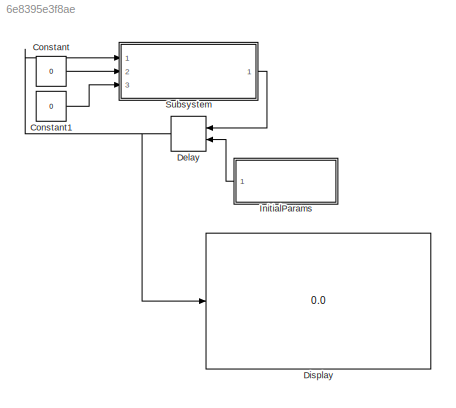
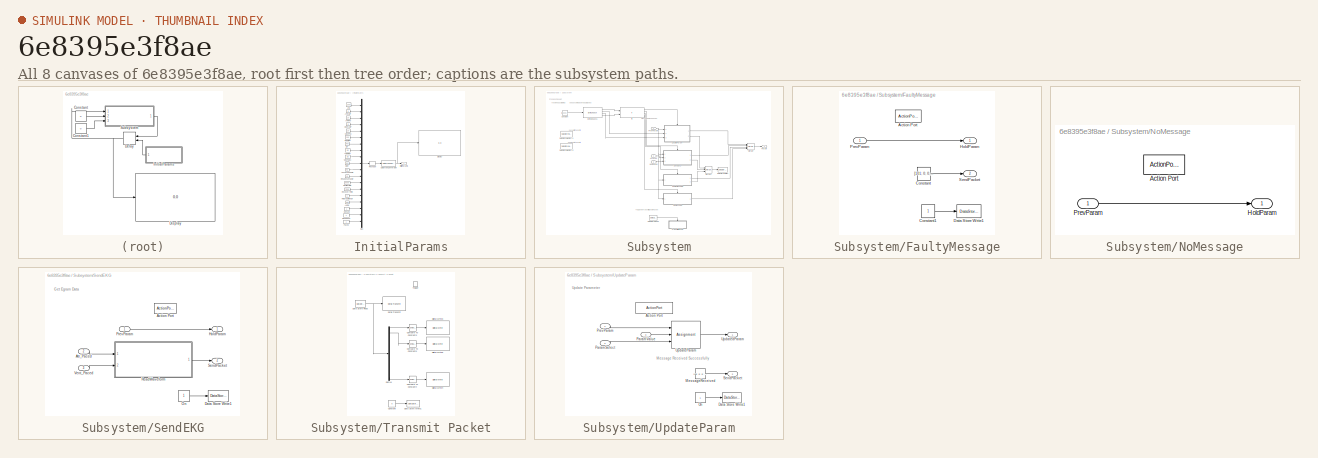
[diagram: thumbnail index - all 8 canvases of the model, root first then tree order]
MODEL slx_6e8395e3f8ae
KIND model
CONFIG AbsTol = auto
CONFIG EnableMultiTasking = on
CONFIG FixedStep = 1e-3
CONFIG MaxStep = auto
CONFIG MinStep = auto
CONFIG RelTol = 1e-3
CONFIG SampleTimeConstraint = Unconstrained
CONFIG Solver = FixedStepAuto
CONFIG SolverName = FixedStepAuto
CONFIG StartTime = 0.0
CONFIG StopTime = 10.0
BLOCK [Constant] Constant
  OutDataTypeStr = uint8
  Value = 0
BLOCK [Constant] Constant1
  OutDataTypeStr = uint8
  Value = 0
BLOCK [Delay] Delay
  DelayLength = 1
  InitialCondition = [1000 5 10 5 10 300 400 3.5 3.5 500 0.1 16 5000 5000 1 100 1 1 1]
  InitialConditionSource = Input port
  InputPortMap = u0,p4
  Ports = [2, 1]
BLOCK [Display] Display
  Decimation = 1
  Ports = [1]
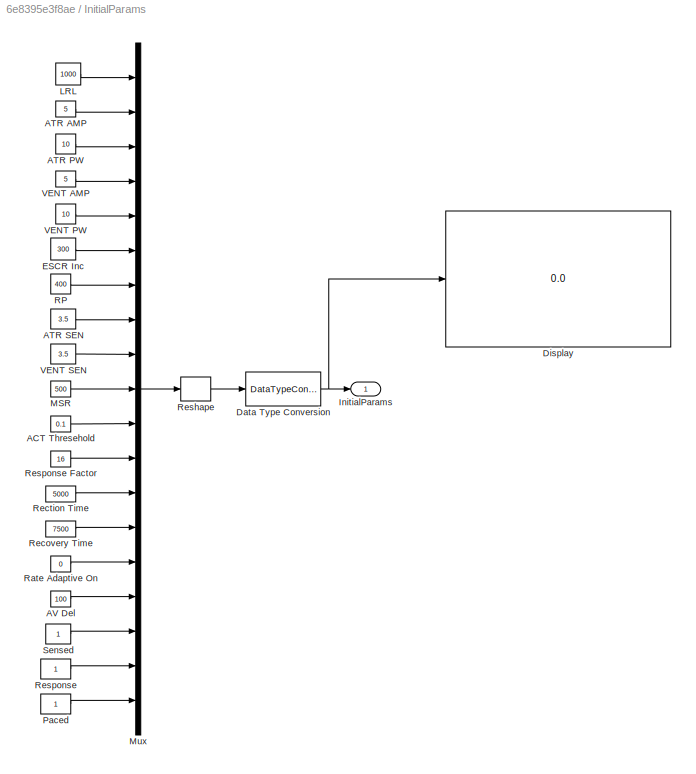
BLOCK [SubSystem] InitialParams
  Ports = [0, 1]
  RequestExecContextInheritance = off
BLOCK [Constant] InitialParams/ ACT Thresehold
  Value = 0.1
BLOCK [Constant] InitialParams/ MSR
  Value = 500
BLOCK [Constant] InitialParams/ VENT AMP
  Value = 5
BLOCK [Constant] InitialParams/ATR AMP
  Value = 5
BLOCK [Constant] InitialParams/ATR PW
  Value = 10
BLOCK [Constant] InitialParams/ATR SEN
  Value = 3.5
BLOCK [Constant] InitialParams/AV Del
  Value = 100
BLOCK [DataTypeConversion] InitialParams/Data Type Conversion
  OutDataTypeStr = single
  RndMeth = Floor
  SaturateOnIntegerOverflow = off
BLOCK [Display] InitialParams/Display
  Decimation = 1
  Ports = [1]
BLOCK [Constant] InitialParams/ESCR Inc
  Value = 300
BLOCK [Outport] InitialParams/InitialParams
BLOCK [Constant] InitialParams/LRL
  Value = 1000
BLOCK [Mux] InitialParams/Mux
  DisplayOption = bar
  Inputs = 19
  Ports = [19, 1]
BLOCK [Constant] InitialParams/Paced
BLOCK [Constant] InitialParams/RP
  Value = 400
BLOCK [Constant] InitialParams/Rate Adaptive On
  Value = 0
BLOCK [Constant] InitialParams/Recovery Time
  Value = 7500
BLOCK [Constant] InitialParams/Rection Time
  Value = 5000
BLOCK [Reshape] InitialParams/Reshape
  OutputDimensionality = Row vector (2-D)
  Ports = [1, 1]
BLOCK [Constant] InitialParams/Response
BLOCK [Constant] InitialParams/Response Factor
  Value = 16
BLOCK [Constant] InitialParams/Sensed
BLOCK [Constant] InitialParams/VENT PW
  Value = 10
BLOCK [Constant] InitialParams/VENT SEN
  Value = 3.5
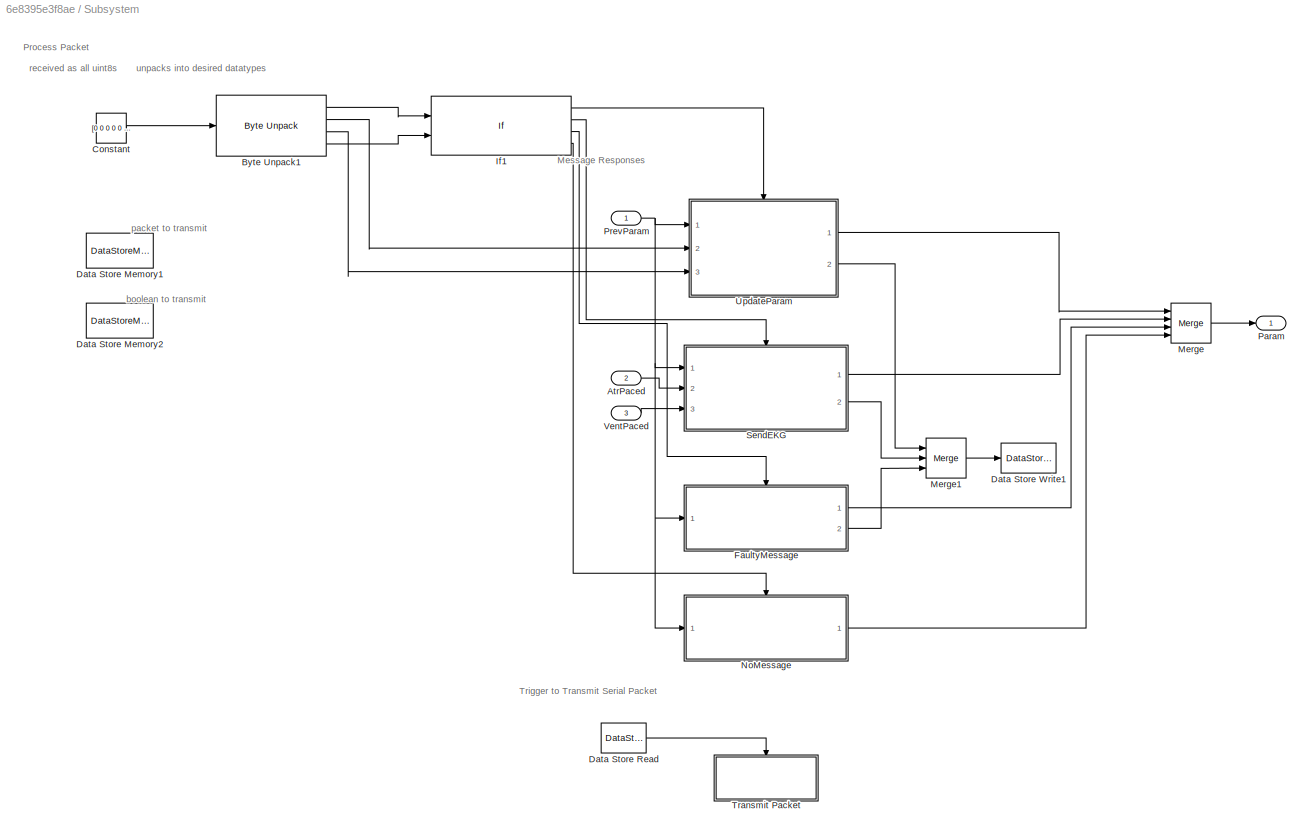
BLOCK [SubSystem] Subsystem
  Ports = [3, 1]
  RequestExecContextInheritance = off
BLOCK [Inport] Subsystem/AtrPaced
  Port = 2
BLOCK [Reference] Subsystem/Byte Unpack1  REF=etargetslib/Byte Unpack
  Ports = [1, 4]
  SourceBlock = etargetslib/Byte Unpack
  SourceProductBaseCode = ME
  SourceType = Byte Unpack
BLOCK [Constant] Subsystem/Constant
  OutDataTypeStr = uint8
  Value = [0 0 0 0 0 0 0]
BLOCK [DataStoreMemory] Subsystem/Data Store Memory1
  DataStoreName = Message
  InitialValue = [0; 0; 0; 0; 0; 0; 0; 0; 0; 0; 0; 0; 0; 0; 0; 0]
  OutDataTypeStr = uint8
  ReadBeforeWriteMsg = warning
  ShowAdditionalParam = off
  WriteAfterReadMsg = warning
  WriteAfterWriteMsg = warning
BLOCK [DataStoreMemory] Subsystem/Data Store Memory2
  DataStoreName = Transmit
  ReadBeforeWriteMsg = warning
  ShowAdditionalParam = off
  WriteAfterReadMsg = warning
  WriteAfterWriteMsg = warning
BLOCK [DataStoreRead] Subsystem/Data Store Read
  DataStoreName = Transmit
  Ports = [0, 1]
BLOCK [DataStoreWrite] Subsystem/Data Store Write1
  DataStoreName = Message
  Ports = [1]
BLOCK [SubSystem] Subsystem/FaultyMessage
  Ports = [1, 2, 0, 0, 0, 0, 0, 1]
  RequestExecContextInheritance = off
  TreatAsAtomicUnit = on
BLOCK [ActionPort] Subsystem/FaultyMessage/Action Port
  ActionPortLabel = elseif( u1~=0 & u2~=0)
BLOCK [Constant] Subsystem/FaultyMessage/Constant
  OutDataTypeStr = uint8
  Value = [101; 0; 0; 0; 0; 0; 0; 0; 0; 0; 0; 0; 0; 0; 0; 42]
BLOCK [Constant] Subsystem/FaultyMessage/Constant1
BLOCK [DataStoreWrite] Subsystem/FaultyMessage/Data Store Write1
  DataStoreName = Transmit
  Ports = [1]
BLOCK [Outport] Subsystem/FaultyMessage/HoldParam
BLOCK [Inport] Subsystem/FaultyMessage/PrevParam
BLOCK [Outport] Subsystem/FaultyMessage/SendPacket
  Port = 2
BLOCK [If] Subsystem/If1
  ElseIfExpressions = u1 == 85 & u2 == 42, u1~=0 & u2~=0
  IfExpression = u1 == 34 & u2 == 42
  NumInputs = 2
  Ports = [2, 4]
BLOCK [Merge] Subsystem/Merge
  Inputs = 4
  Ports = [4, 1]
BLOCK [Merge] Subsystem/Merge1
  Inputs = 3
  Ports = [3, 1]
BLOCK [SubSystem] Subsystem/NoMessage
  Ports = [1, 1, 0, 0, 0, 0, 0, 1]
  RequestExecContextInheritance = off
  TreatAsAtomicUnit = on
BLOCK [ActionPort] Subsystem/NoMessage/Action Port
  ActionPortLabel = else
BLOCK [Outport] Subsystem/NoMessage/HoldParam
BLOCK [Inport] Subsystem/NoMessage/PrevParam
BLOCK [Outport] Subsystem/Param
BLOCK [Inport] Subsystem/PrevParam
BLOCK [SubSystem] Subsystem/SendEKG
  Ports = [3, 2, 0, 0, 0, 0, 0, 1]
  RequestExecContextInheritance = off
  TreatAsAtomicUnit = on
BLOCK [ActionPort] Subsystem/SendEKG/Action Port
  ActionPortLabel = elseif(u1 == 85 & u2 == 42)
BLOCK [Inport] Subsystem/SendEKG/Atr_Paced
  OutDataTypeStr = uint8
  Port = 2
BLOCK [DataStoreWrite] Subsystem/SendEKG/Data Store Write1
  DataStoreName = Transmit
  Ports = [1]
BLOCK [Outport] Subsystem/SendEKG/HoldParam
BLOCK [Constant] Subsystem/SendEKG/On
BLOCK [Inport] Subsystem/SendEKG/PrevParam
BLOCK [ModelReference] Subsystem/SendEKG/ReadWaveform
  ModelNameDialog = ReadWaveform.slx
  ModelReferenceVersion = 1.10
  Ports = [2, 1]
BLOCK [Outport] Subsystem/SendEKG/SendPacket
  Port = 2
BLOCK [Inport] Subsystem/SendEKG/Vent_Paced
  OutDataTypeStr = uint8
  Port = 3
BLOCK [SubSystem] Subsystem/Transmit Packet
  Ports = [0, 0, 0, 1]
  RequestExecContextInheritance = off
  TreatAsAtomicUnit = on
BLOCK [Reference] Subsystem/Transmit Packet/Compare To Constant3  REF=simulink/Logic and Bit
Operations/Compare
To Constant
  Commented = on
  Ports = [1, 1]
  SourceBlock = simulink/Logic and Bit\nOperations/Compare\nTo Constant
  SourceProductBaseCode = SL
  SourceType = Compare To Constant
BLOCK [Reference] Subsystem/Transmit Packet/Compare To Constant4  REF=simulink/Logic and Bit
Operations/Compare
To Constant
  Commented = on
  Ports = [1, 1]
  SourceBlock = simulink/Logic and Bit\nOperations/Compare\nTo Constant
  SourceProductBaseCode = SL
  SourceType = Compare To Constant
BLOCK [Reference] Subsystem/Transmit Packet/Compare To Constant5  REF=simulink/Logic and Bit
Operations/Compare
To Constant
  Commented = on
  Ports = [1, 1]
  SourceBlock = simulink/Logic and Bit\nOperations/Compare\nTo Constant
  SourceProductBaseCode = SL
  SourceType = Compare To Constant
BLOCK [Constant] Subsystem/Transmit Packet/Constant
  Value = 0
BLOCK [DataStoreRead] Subsystem/Transmit Packet/Data Store Read
  DataStoreName = Message
  Ports = [0, 1]
BLOCK [DataStoreWrite] Subsystem/Transmit Packet/Data Store Write1
  DataStoreName = Transmit
  Ports = [1]
BLOCK [Demux] Subsystem/Transmit Packet/Demux
  Commented = on
  Outputs = 16
  Ports = [1, 16]
BLOCK [Reference] Subsystem/Transmit Packet/Digital Write3  REF=frdmk64flib/Digital Write
  Commented = on
  Ports = [1]
  SourceBlock = frdmk64flib/Digital Write
  SourceProductBaseCode = EC_FRDM_K64F
  SourceType = freedomk64f.DigitalWrite
BLOCK [Reference] Subsystem/Transmit Packet/Digital Write4  REF=frdmk64flib/Digital Write
  Commented = on
  Ports = [1]
  SourceBlock = frdmk64flib/Digital Write
  SourceProductBaseCode = EC_FRDM_K64F
  SourceType = freedomk64f.DigitalWrite
BLOCK [Reference] Subsystem/Transmit Packet/Digital Write5  REF=frdmk64flib/Digital Write
  Commented = on
  Ports = [1]
  SourceBlock = frdmk64flib/Digital Write
  SourceProductBaseCode = EC_FRDM_K64F
  SourceType = freedomk64f.DigitalWrite
BLOCK [Reference] Subsystem/Transmit Packet/Serial Transmit  REF=frdmk64flib/Serial Transmit
  Commented = on
  Ports = [1]
  SourceBlock = frdmk64flib/Serial Transmit
  SourceProductBaseCode = EC_FRDM_K64F
  SourceType = freedomk64f.SCIWrite
BLOCK [TriggerPort] Subsystem/Transmit Packet/Trigger
  PortDimensions = 1
  Ports = []
  StatesWhenEnabling = held
  VariantControl = Variant
BLOCK [SubSystem] Subsystem/UpdateParam
  Ports = [3, 2, 0, 0, 0, 0, 0, 1]
  RequestExecContextInheritance = off
BLOCK [ActionPort] Subsystem/UpdateParam/Action Port
  ActionPortLabel = if(u1 == 34 & u2 == 42)
BLOCK [DataStoreWrite] Subsystem/UpdateParam/Data Store Write1
  DataStoreName = Transmit
  Ports = [1]
BLOCK [Constant] Subsystem/UpdateParam/MessageReceived
  OutDataTypeStr = uint8
  Value = [66; 0; 0; 0; 0; 0; 0; 0; 0; 0; 0; 0; 0; 0; 0; 42]
BLOCK [Constant] Subsystem/UpdateParam/On
BLOCK [Inport] Subsystem/UpdateParam/ParamSelect
  Port = 2
BLOCK [Inport] Subsystem/UpdateParam/ParamValue
  Port = 3
BLOCK [Inport] Subsystem/UpdateParam/PrevParam
  OutDataTypeStr = single
  PortDimensions = [1 19]
BLOCK [Outport] Subsystem/UpdateParam/SendPacket
  Port = 2
BLOCK [Assignment] Subsystem/UpdateParam/UpdateParam
  DiagnosticForDimensions = Warning
  IndexOptions = Index vector (port)
  Indices = 1
  OutputSizes = 1
  Ports = [3, 1]
BLOCK [Outport] Subsystem/UpdateParam/UpdatedParam
BLOCK [Inport] Subsystem/VentPaced
  Port = 3
ANNOTATION Subsystem: Message Responses
ANNOTATION Subsystem: Process Packet
ANNOTATION Subsystem: Trigger to Transmit Serial Packet
ANNOTATION Subsystem: boolean to transmit
ANNOTATION Subsystem: packet to transmit
ANNOTATION Subsystem: received as all uint8s
ANNOTATION Subsystem: unpacks into desired datatypes
ANNOTATION Subsystem/SendEKG: Get Egram Data
ANNOTATION Subsystem/UpdateParam: Message Received Successfully
ANNOTATION Subsystem/UpdateParam: Update Parameter
LINE Constant1:1 -> Subsystem:3
LINE Constant:1 -> Subsystem:2
NET Delay:1 -> Display:1, Subsystem:1
LINE InitialParams/ ACT Thresehold:1 -> InitialParams/Mux:11
LINE InitialParams/ MSR:1 -> InitialParams/Mux:10
LINE InitialParams/ VENT AMP:1 -> InitialParams/Mux:4
LINE InitialParams/ATR AMP:1 -> InitialParams/Mux:2
LINE InitialParams/ATR PW:1 -> InitialParams/Mux:3
LINE InitialParams/ATR SEN:1 -> InitialParams/Mux:8
LINE InitialParams/AV Del:1 -> InitialParams/Mux:16
NET InitialParams/Data Type Conversion:1 -> InitialParams/Display:1, InitialParams/InitialParams:1
LINE InitialParams/ESCR Inc:1 -> InitialParams/Mux:6
LINE InitialParams/LRL:1 -> InitialParams/Mux:1
LINE InitialParams/Mux:1 -> InitialParams/Reshape:1
LINE InitialParams/Paced:1 -> InitialParams/Mux:19
LINE InitialParams/RP:1 -> InitialParams/Mux:7
LINE InitialParams/Rate Adaptive On:1 -> InitialParams/Mux:15
LINE InitialParams/Recovery Time:1 -> InitialParams/Mux:14
LINE InitialParams/Rection Time:1 -> InitialParams/Mux:13
LINE InitialParams/Reshape:1 -> InitialParams/Data Type Conversion:1
LINE InitialParams/Response Factor:1 -> InitialParams/Mux:12
LINE InitialParams/Response:1 -> InitialParams/Mux:18
LINE InitialParams/Sensed:1 -> InitialParams/Mux:17
LINE InitialParams/VENT PW:1 -> InitialParams/Mux:5
LINE InitialParams/VENT SEN:1 -> InitialParams/Mux:9
LINE InitialParams:1 -> Delay:2
LINE Subsystem/AtrPaced:1 -> Subsystem/SendEKG:2
LINE Subsystem/Byte Unpack1:1 -> Subsystem/If1:1
LINE Subsystem/Byte Unpack1:2 -> Subsystem/UpdateParam:2
LINE Subsystem/Byte Unpack1:3 -> Subsystem/UpdateParam:3
LINE Subsystem/Byte Unpack1:4 -> Subsystem/If1:2
LINE Subsystem/Constant:1 -> Subsystem/Byte Unpack1:1
LINE Subsystem/Data Store Read:1 -> Subsystem/Transmit Packet:trigger
LINE Subsystem/FaultyMessage/Constant1:1 -> Subsystem/FaultyMessage/Data Store Write1:1
LINE Subsystem/FaultyMessage/Constant:1 -> Subsystem/FaultyMessage/SendPacket:1
LINE Subsystem/FaultyMessage/PrevParam:1 -> Subsystem/FaultyMessage/HoldParam:1
LINE Subsystem/FaultyMessage:1 -> Subsystem/Merge:3
LINE Subsystem/FaultyMessage:2 -> Subsystem/Merge1:3
LINE Subsystem/If1:1 -> Subsystem/UpdateParam:ifaction
LINE Subsystem/If1:2 -> Subsystem/SendEKG:ifaction
LINE Subsystem/If1:3 -> Subsystem/FaultyMessage:ifaction
LINE Subsystem/If1:4 -> Subsystem/NoMessage:ifaction
LINE Subsystem/Merge1:1 -> Subsystem/Data Store Write1:1
LINE Subsystem/Merge:1 -> Subsystem/Param:1
LINE Subsystem/NoMessage/PrevParam:1 -> Subsystem/NoMessage/HoldParam:1
LINE Subsystem/NoMessage:1 -> Subsystem/Merge:4
NET Subsystem/PrevParam:1 -> Subsystem/FaultyMessage:1, Subsystem/NoMessage:1, Subsystem/SendEKG:1, Subsystem/UpdateParam:1
LINE Subsystem/SendEKG/Atr_Paced:1 -> Subsystem/SendEKG/ReadWaveform:1
LINE Subsystem/SendEKG/On:1 -> Subsystem/SendEKG/Data Store Write1:1
LINE Subsystem/SendEKG/PrevParam:1 -> Subsystem/SendEKG/HoldParam:1
LINE Subsystem/SendEKG/ReadWaveform:1 -> Subsystem/SendEKG/SendPacket:1
LINE Subsystem/SendEKG/Vent_Paced:1 -> Subsystem/SendEKG/ReadWaveform:2
LINE Subsystem/SendEKG:1 -> Subsystem/Merge:2
LINE Subsystem/SendEKG:2 -> Subsystem/Merge1:2
LINE Subsystem/Transmit Packet/Compare To Constant3:1 -> Subsystem/Transmit Packet/Digital Write3:1
LINE Subsystem/Transmit Packet/Compare To Constant4:1 -> Subsystem/Transmit Packet/Digital Write4:1
LINE Subsystem/Transmit Packet/Compare To Constant5:1 -> Subsystem/Transmit Packet/Digital Write5:1
LINE Subsystem/Transmit Packet/Constant:1 -> Subsystem/Transmit Packet/Data Store Write1:1
NET Subsystem/Transmit Packet/Data Store Read:1 -> Subsystem/Transmit Packet/Demux:1, Subsystem/Transmit Packet/Serial Transmit:1
LINE Subsystem/Transmit Packet/Demux:1 -> Subsystem/Transmit Packet/Compare To Constant3:1
LINE Subsystem/Transmit Packet/Demux:16 -> Subsystem/Transmit Packet/Compare To Constant4:1
LINE Subsystem/Transmit Packet/Demux:2 -> Subsystem/Transmit Packet/Compare To Constant5:1
LINE Subsystem/UpdateParam/MessageReceived:1 -> Subsystem/UpdateParam/SendPacket:1
LINE Subsystem/UpdateParam/On:1 -> Subsystem/UpdateParam/Data Store Write1:1
LINE Subsystem/UpdateParam/ParamSelect:1 -> Subsystem/UpdateParam/UpdateParam:3
LINE Subsystem/UpdateParam/ParamValue:1 -> Subsystem/UpdateParam/UpdateParam:2
LINE Subsystem/UpdateParam/PrevParam:1 -> Subsystem/UpdateParam/UpdateParam:1
LINE Subsystem/UpdateParam/UpdateParam:1 -> Subsystem/UpdateParam/UpdatedParam:1
LINE Subsystem/UpdateParam:1 -> Subsystem/Merge:1
LINE Subsystem/UpdateParam:2 -> Subsystem/Merge1:1
LINE Subsystem/VentPaced:1 -> Subsystem/SendEKG:3
LINE Subsystem:1 -> Delay:1
note: NET lines group one-source signal fan-out (src -> all destinations, sorted); 1:1 wires keep LINE
